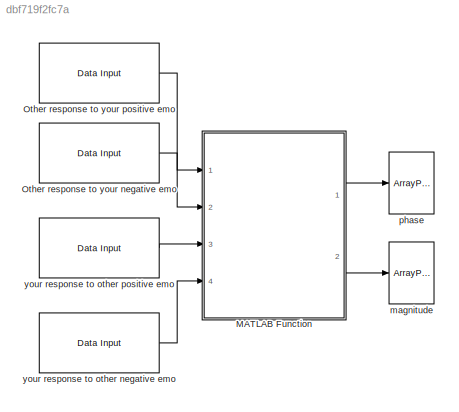
MODEL slx_dbf719f2fc7a
KIND model
CONFIG AbsTol = auto
CONFIG EnableMultiTasking = off
CONFIG FixedStep = auto
CONFIG MaxStep = auto
CONFIG MinStep = auto
CONFIG RelTol = 1e-3
CONFIG SampleTimeConstraint = Unconstrained
CONFIG Solver = FixedStepAuto
CONFIG SolverName = FixedStepAuto
CONFIG StartTime = 0.0
CONFIG StopTime = 1
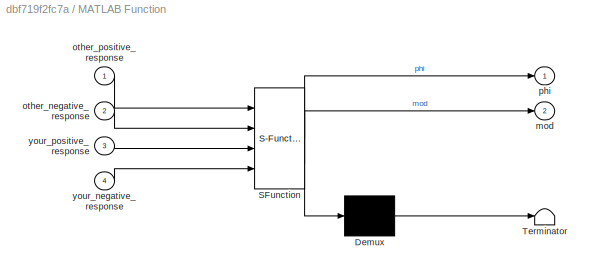
BLOCK [SubSystem] MATLAB Function
  ErrorFcn = Stateflow.Translate.translate
  PermitHierarchicalResolution = ExplicitOnly
  Ports = [4, 2]
  RequestExecContextInheritance = off
  SFBlockType = MATLAB Function
  TreatAsAtomicUnit = on
BLOCK [Demux] MATLAB Function/ Demux 
  Outputs = 1
  Ports = [1, 1]
BLOCK [S-Function] MATLAB Function/ SFunction 
  EnableBusSupport = on
  FunctionName = sf_sfun
  PortCounts = [4 3]
  Ports = [4, 3]
  SFcnIsStateOwnerBlock = off
  SFunctionDeploymentMode = off
  Tag = Stateflow S-Function matlab_file_rl 2
BLOCK [Terminator] MATLAB Function/ Terminator 
BLOCK [Outport] MATLAB Function/mod
  IconDisplay = Port number
  Port = 2
BLOCK [Inport] MATLAB Function/other_negative_response
  IconDisplay = Port number
  Port = 2
BLOCK [Inport] MATLAB Function/other_positive_response
  IconDisplay = Port number
BLOCK [Outport] MATLAB Function/phi
  IconDisplay = Port number
BLOCK [Inport] MATLAB Function/your_negative_response
  IconDisplay = Port number
  Port = 4
BLOCK [Inport] MATLAB Function/your_positive_response
  IconDisplay = Port number
  Port = 3
BLOCK [Reference] Other response to your negative emo  REF=androiduilib/Data Input
  Ports = [0, 1]
  SourceBlock = androiduilib/Data Input
  SourceProductBaseCode = ANDROID
  SourceProductName = Simulink Support Package for Android Devices
  SourceType = codertarget.internal.androidDataInput
BLOCK [Reference] Other response to your positive emo  REF=androiduilib/Data Input
  Ports = [0, 1]
  SourceBlock = androiduilib/Data Input
  SourceProductBaseCode = ANDROID
  SourceProductName = Simulink Support Package for Android Devices
  SourceType = codertarget.internal.androidDataInput
BLOCK [ArrayPlot] magnitude
  Ports = [1]
  ScopeSpecificationString = dsp.scopes.ArrayPlotBlockSpecification('CurrentConfiguration', extmgr.ConfigurationSet(extmgr.Configuration('Core','General UI',true),extmgr.Configuration('Core','Source UI',true),extmgr.Configuration('Sources','WiredSimulink',true),extmgr.Configuration('Sources','SimulinkEvent',false),extmgr.Configuration('Sources','Simulink',false),extmgr.Configuration('Sources','SPTool',false),extmgr.Configurat...<+3027ch>
BLOCK [ArrayPlot] phase
  Ports = [1]
  ScopeSpecificationString = dsp.scopes.ArrayPlotBlockSpecification('CurrentConfiguration', extmgr.ConfigurationSet(extmgr.Configuration('Core','General UI',true),extmgr.Configuration('Core','Source UI',true),extmgr.Configuration('Sources','WiredSimulink',true),extmgr.Configuration('Visuals','Array Plot',true,'DisplayPropertyDefaults',struct('MinYLimReal','-380.924','MaxYLimReal','387.076','YLabelReal','Amplitude','MinYLimMag...<+3066ch>
BLOCK [Reference] your response to other negative emo  REF=androiduilib/Data Input
  Ports = [0, 1]
  SourceBlock = androiduilib/Data Input
  SourceProductBaseCode = ANDROID
  SourceProductName = Simulink Support Package for Android Devices
  SourceType = codertarget.internal.androidDataInput
BLOCK [Reference] your response to other positive emo  REF=androiduilib/Data Input
  Ports = [0, 1]
  SourceBlock = androiduilib/Data Input
  SourceProductBaseCode = ANDROID
  SourceProductName = Simulink Support Package for Android Devices
  SourceType = codertarget.internal.androidDataInput
LINE MATLAB Function:1 -> phase:1
LINE MATLAB Function:2 -> magnitude:1
LINE Other response to your negative emo:1 -> MATLAB Function:2
LINE Other response to your positive emo:1 -> MATLAB Function:1
LINE your response to other negative emo:1 -> MATLAB Function:4
LINE your response to other positive emo:1 -> MATLAB Function:3
CHART MATLAB Function states=1 transitions=1
  STATE_LABEL 'eML_blk_kernel()'
  STATE_LABEL "SCRIPT:\nfunction [phi, mod]  = rl_relation(other_positive_response,other_negative_response,...\n    your_positive_response,your_negative_response)\n[x,y] = meshgrid(-8:0.2:8,-8:0.2:8);\n% asking question\n% explain behavior of partner\n% logic questions\n% other_positive_response=input('others reponse to your positive feeling');\n% other_negative_response=input('others reponse to your negative feeling');...<+3608ch>"
